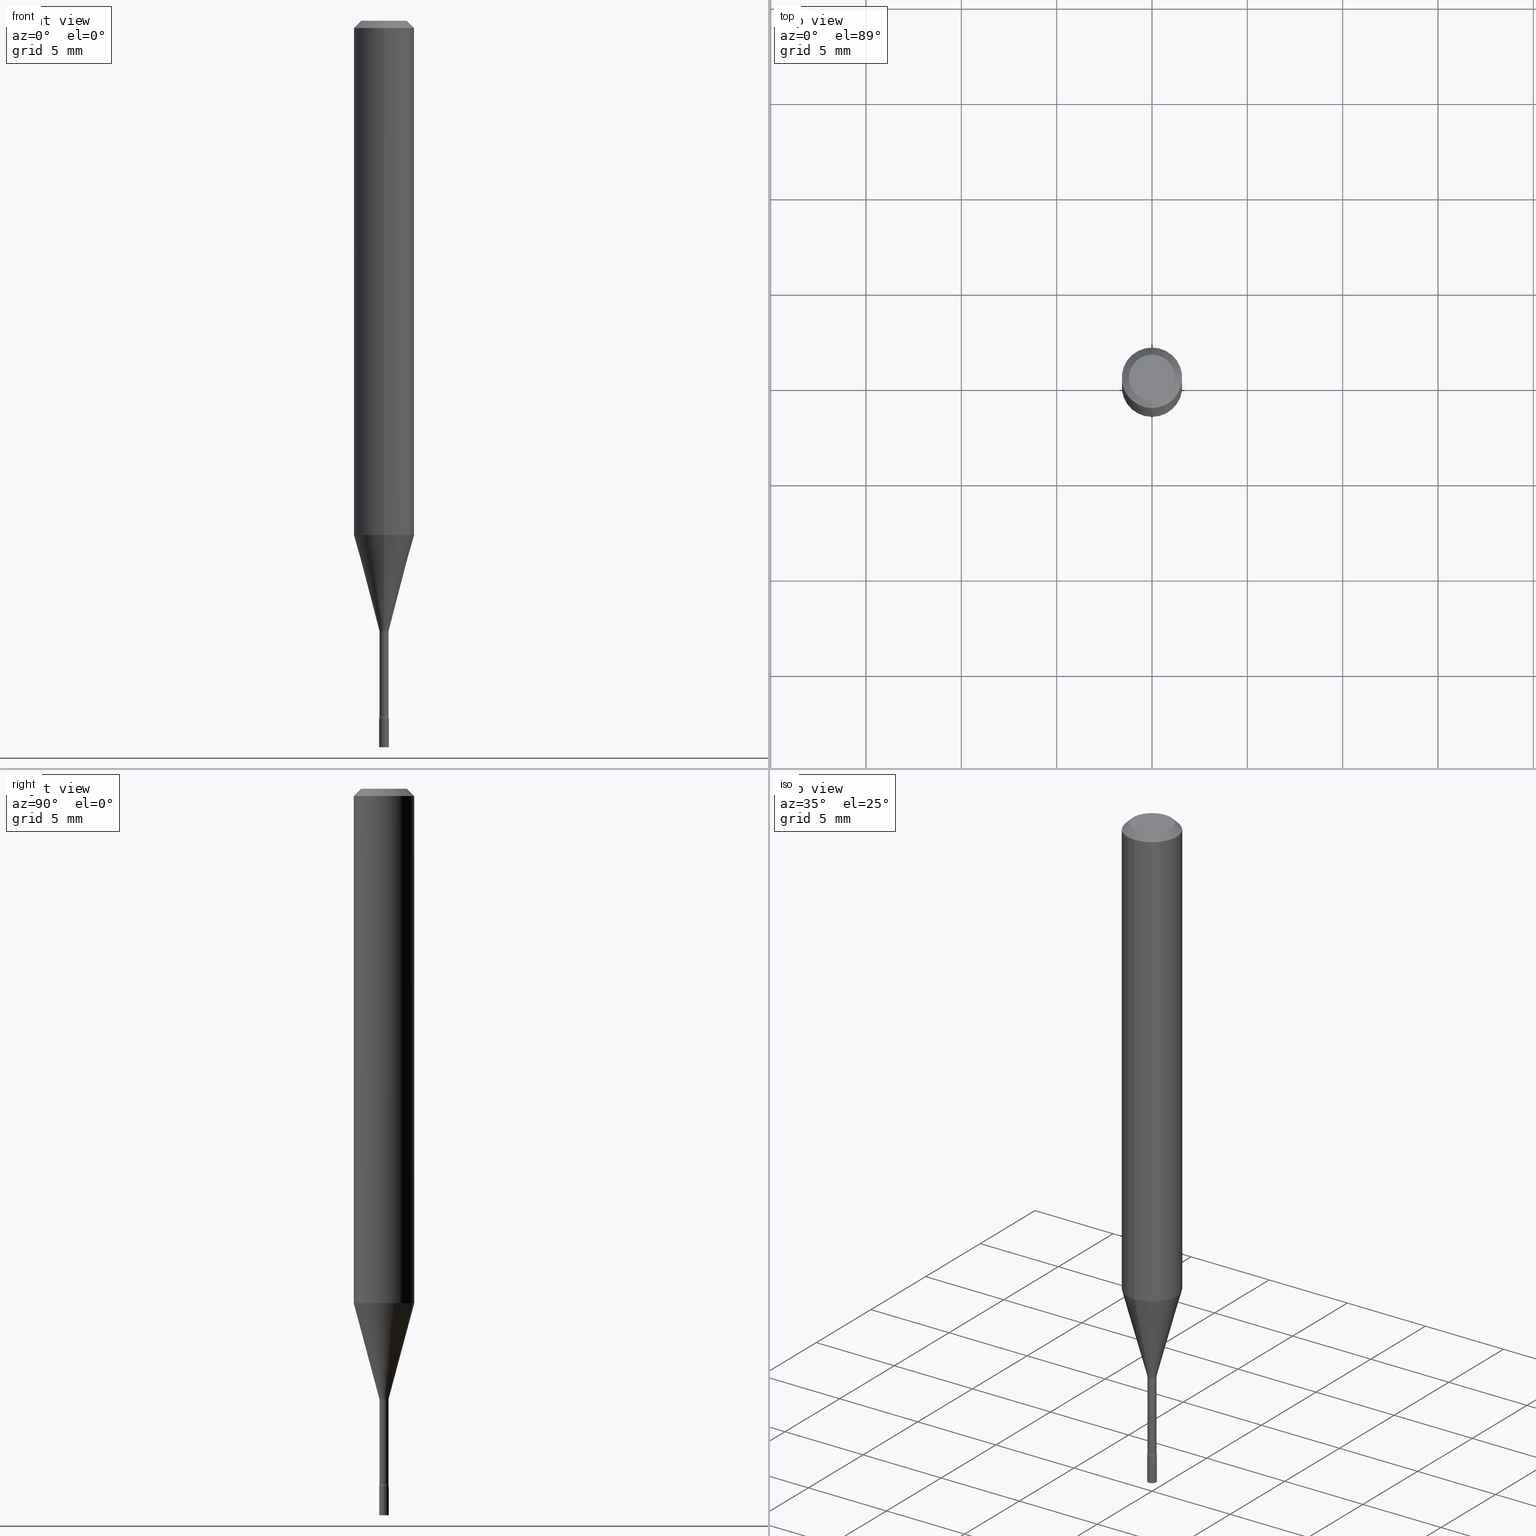
[diagram: canonical four-view strip — front | top / right | iso, engineering-drawing reading convention]
A machine part, canonical four-view strip (front | top / right | iso — engineering-drawing reading convention). The complete STEP part file that produces these views, byte-faithful:
ISO-10303-21;
HEADER;
FILE_DESCRIPTION (( 'STEP AP203' ),
    '1' );
FILE_NAME ('09356.STEP',
    '2024-03-08T23:17:54',
    ( '' ),
    ( '' ),
    'SwSTEP 2.0',
    'SolidWorks 2023',
    '' );
FILE_SCHEMA (( 'CONFIG_CONTROL_DESIGN' ));
ENDSEC;

DATA;
#1 = DIRECTION ( 'NONE',  ( 1.000000000000000000, -6.982962677686265922E-15, 4.876176775795935793E-29 ) ) ;
#2 = CC_DESIGN_PERSON_AND_ORGANIZATION_ASSIGNMENT ( #31, #191, ( #445 ) ) ;
#3 = DIRECTION ( 'NONE',  ( -6.982962677686265922E-15, -1.000000000000000000, 3.491392881467327032E-15 ) ) ;
#4 = DATE_AND_TIME ( #87, #151 ) ;
#5 = ADVANCED_BREP_SHAPE_REPRESENTATION ( '09356', ( #181, #13, #335 ), #44 ) ;
#6 = AXIS2_PLACEMENT_3D ( 'NONE', #290, #446, #157 ) ;
#7 = LINE ( 'NONE', #397, #381 ) ;
#8 = DIRECTION ( 'NONE',  ( -6.982962677686265922E-15, -1.000000000000000000, 0.000000000000000000 ) ) ;
#9 = PERSON_AND_ORGANIZATION ( #362, #312 ) ;
#10 = APPROVAL ( #251, 'UNSPECIFIED' ) ;
#11 = CIRCLE ( 'NONE', #473, 0.04749999999999999362 ) ;
#12 = CARTESIAN_POINT ( 'NONE',  ( 4.440892098500884514E-16, 0.06249999999999630157, -1.061828102118093309 ) ) ;
#13 = MANIFOLD_SOLID_BREP ( 'Body-Move/Copy2[2]', #402 ) ;
#14 = EDGE_LOOP ( 'NONE', ( #66, #146, #361, #225 ) ) ;
#15 = DIRECTION ( 'NONE',  ( -6.982962677686266711E-15, -1.000000000000000000, 3.491392881467327426E-15 ) ) ;
#16 = VERTEX_POINT ( 'NONE', #451 ) ;
#17 = CARTESIAN_POINT ( 'NONE',  ( -0.01000000000000000021, -5.061423294523413937E-15, -1.500000000000000222 ) ) ;
#18 = CARTESIAN_POINT ( 'NONE',  ( 3.086197928430206687E-29, -4.406049789542393538E-15, -1.261974787463811198 ) ) ;
#19 = VECTOR ( 'NONE', #55, 39.37007874015748143 ) ;
#20 = DIRECTION ( 'NONE',  ( -2.445468806185136597E-29, 3.491481338843145583E-15, 1.000000000000000000 ) ) ;
#21 = EDGE_CURVE ( 'NONE', #461, #32, #371, .T. ) ;
#22 = ORIENTED_EDGE ( 'NONE', *, *, #174, .T. ) ;
#23 = VERTEX_POINT ( 'NONE', #500 ) ;
#24 = PRODUCT_DEFINITION ( 'UNKNOWN', '', #515, #432 ) ;
#25 = ORIENTED_EDGE ( 'NONE', *, *, #359, .T. ) ;
#26 = DIRECTION ( 'NONE',  ( 1.839019923739596765E-15, 0.2588190451025244587, 0.9659258262890673130 ) ) ;
#27 = CIRCLE ( 'NONE', #347, 0.009911112605663982209 ) ;
#28 = DIRECTION ( 'NONE',  ( -2.445530575640527241E-29, 3.491392881467327032E-15, 1.000000000000000000 ) ) ;
#29 = ORIENTED_EDGE ( 'NONE', *, *, #503, .T. ) ;
#30 = DIRECTION ( 'NONE',  ( -2.445530575640527241E-29, 3.491392881467327032E-15, 1.000000000000000000 ) ) ;
#31 = PERSON_AND_ORGANIZATION ( #362, #312 ) ;
#32 = VERTEX_POINT ( 'NONE', #369 ) ;
#33 = AXIS2_PLACEMENT_3D ( 'NONE', #226, #147, #309 ) ;
#34 = DIRECTION ( 'NONE',  ( -2.445530575640527241E-29, 3.491392881467327032E-15, 1.000000000000000000 ) ) ;
#35 = AXIS2_PLACEMENT_3D ( 'NONE', #81, #483, #90 ) ;
#36 = DIRECTION ( 'NONE',  ( -6.982962677686266711E-15, -1.000000000000000000, 3.491392881467327426E-15 ) ) ;
#37 = COORDINATED_UNIVERSAL_TIME_OFFSET ( 5, 0, .BEHIND. ) ;
#38 = CARTESIAN_POINT ( 'NONE',  ( 0.000000000000000000, 0.000000000000000000, 0.000000000000000000 ) ) ;
#39 = DIRECTION ( 'NONE',  ( -2.445530575640527241E-29, 3.491392881467327032E-15, 1.000000000000000000 ) ) ;
#40 = SHAPE_DEFINITION_REPRESENTATION ( #48, #5 ) ;
#41 = VECTOR ( 'NONE', #420, 39.37007874015748143 ) ;
#42 = DIRECTION ( 'NONE',  ( -2.445530575640527241E-29, 3.491392881467327032E-15, 1.000000000000000000 ) ) ;
#43 = AXIS2_PLACEMENT_3D ( 'NONE', #111, #343, #340 ) ;
#44 =( GEOMETRIC_REPRESENTATION_CONTEXT ( 3 ) GLOBAL_UNCERTAINTY_ASSIGNED_CONTEXT ( ( #467 ) ) GLOBAL_UNIT_ASSIGNED_CONTEXT ( ( #49, #308, #378 ) ) REPRESENTATION_CONTEXT ( 'NONE', 'WORKASPACE' ) );
#45 = EDGE_CURVE ( 'NONE', #366, #263, #27, .T. ) ;
#46 = DIRECTION ( 'NONE',  ( -6.982962677686265922E-15, -1.000000000000000000, 3.483106191921935554E-15 ) ) ;
#47 = DIRECTION ( 'NONE',  ( -2.445530575640527241E-29, 3.491392881467327032E-15, 1.000000000000000000 ) ) ;
#48 = PRODUCT_DEFINITION_SHAPE ( 'NONE', 'NONE',  #24 ) ;
#49 =( CONVERSION_BASED_UNIT ( 'INCH', #491 ) LENGTH_UNIT ( ) NAMED_UNIT ( #197 ) );
#50 = EDGE_LOOP ( 'NONE', ( #513, #333, #109, #267 ) ) ;
#51 = CIRCLE ( 'NONE', #394, 0.01500000000000004455 ) ;
#52 = ADVANCED_FACE ( 'NONE', ( #301 ), #56, .T. ) ;
#53 = DATE_TIME_ROLE ( 'creation_date' ) ;
#54 = CONICAL_SURFACE ( 'NONE', #274, 0.009911112605663982209, 0.2617993877991497409 ) ;
#55 = DIRECTION ( 'NONE',  ( -2.445530575640527241E-29, 3.491392881467327032E-15, 1.000000000000000000 ) ) ;
#56 = PLANE ( 'NONE',  #319 ) ;
#57 = EDGE_CURVE ( 'NONE', #480, #119, #331, .T. ) ;
#58 = DIRECTION ( 'NONE',  ( -2.445530575640527241E-29, 3.491392881467327032E-15, 1.000000000000000000 ) ) ;
#59 = CIRCLE ( 'NONE', #78, 0.01000000000000000021 ) ;
#60 = FACE_OUTER_BOUND ( 'NONE', #14, .T. ) ;
#61 = APPROVAL_PERSON_ORGANIZATION ( #170, #10, #257 ) ;
#62 = CIRCLE ( 'NONE', #341, 0.06250000000000000000 ) ;
#63 = ORIENTED_EDGE ( 'NONE', *, *, #248, .T. ) ;
#64 = PRODUCT_RELATED_PRODUCT_CATEGORY ( 'detail', '', ( #258 ) ) ;
#65 = DIRECTION ( 'NONE',  ( 1.000000000000000000, -6.982962677686265922E-15, 4.876176775795935793E-29 ) ) ;
#66 = ORIENTED_EDGE ( 'NONE', *, *, #57, .F. ) ;
#67 = CARTESIAN_POINT ( 'NONE',  ( -6.920892941966668740E-17, -0.009911112605668374528, -1.258092501787273276 ) ) ;
#68 = ORIENTED_EDGE ( 'NONE', *, *, #96, .F. ) ;
#69 = DIRECTION ( 'NONE',  ( 2.445530575640527241E-29, -3.491392881467327032E-15, -1.000000000000000000 ) ) ;
#70 = PERSON_AND_ORGANIZATION_ROLE ( 'creator' ) ;
#71 = VECTOR ( 'NONE', #450, 39.37007874015748143 ) ;
#72 = AXIS2_PLACEMENT_3D ( 'NONE', #237, #401, #36 ) ;
#73 = EDGE_LOOP ( 'NONE', ( #354, #302, #63, #163 ) ) ;
#74 = CARTESIAN_POINT ( 'NONE',  ( -6.920892941966668740E-17, -0.009911112605668374528, -1.258092501787273276 ) ) ;
#75 = CARTESIAN_POINT ( 'NONE',  ( 7.042269065257976268E-17, 0.009911112605659589889, -1.258092501787273276 ) ) ;
#76 = ORIENTED_EDGE ( 'NONE', *, *, #268, .T. ) ;
#77 = EDGE_CURVE ( 'NONE', #291, #23, #356, .T. ) ;
#78 = AXIS2_PLACEMENT_3D ( 'NONE', #118, #232, #306 ) ;
#79 = AXIS2_PLACEMENT_3D ( 'NONE', #396, #351, #82 ) ;
#80 = ADVANCED_FACE ( 'NONE', ( #455 ), #200, .F. ) ;
#81 = CARTESIAN_POINT ( 'NONE',  ( 0.000000000000000000, 0.000000000000000000, 0.000000000000000000 ) ) ;
#82 = DIRECTION ( 'NONE',  ( -6.982962677686265133E-15, -1.000000000000000000, 0.000000000000000000 ) ) ;
#83 = EDGE_LOOP ( 'NONE', ( #320, #421, #211, #25 ) ) ;
#84 = ORIENTED_EDGE ( 'NONE', *, *, #498, .F. ) ;
#85 = CALENDAR_DATE ( 2024, 8, 3 ) ;
#86 = DIRECTION ( 'NONE',  ( -6.982962677686265922E-15, -1.000000000000000000, 3.491392881467327426E-15 ) ) ;
#87 = CALENDAR_DATE ( 2024, 8, 3 ) ;
#88 = EDGE_CURVE ( 'NONE', #260, #32, #97, .T. ) ;
#89 = VECTOR ( 'NONE', #172, 39.37007874015748143 ) ;
#90 = DIRECTION ( 'NONE',  ( -6.982962677686265922E-15, -1.000000000000000000, 3.491392881467327032E-15 ) ) ;
#91 = APPROVAL_PERSON_ORGANIZATION ( #439, #201, #278 ) ;
#92 = ORIENTED_EDGE ( 'NONE', *, *, #57, .T. ) ;
#93 = FACE_OUTER_BOUND ( 'NONE', #323, .T. ) ;
#94 = ORIENTED_EDGE ( 'NONE', *, *, #317, .T. ) ;
#95 = DIRECTION ( 'NONE',  ( 2.445530575640527241E-29, -3.491392881467327032E-15, -1.000000000000000000 ) ) ;
#96 = EDGE_CURVE ( 'NONE', #506, #250, #293, .T. ) ;
#97 = LINE ( 'NONE', #102, #470 ) ;
#98 = AXIS2_PLACEMENT_3D ( 'NONE', #355, #478, #8 ) ;
#99 = LINE ( 'NONE', #259, #19 ) ;
#100 = ORIENTED_EDGE ( 'NONE', *, *, #332, .T. ) ;
#101 = DIRECTION ( 'NONE',  ( -2.445530575640527241E-29, 3.491392881467327032E-15, 1.000000000000000000 ) ) ;
#102 = CARTESIAN_POINT ( 'NONE',  ( 4.364351673553919652E-16, 0.06249999999999995143, -0.01500000000000024751 ) ) ;
#103 = VECTOR ( 'NONE', #273, 39.37007874015748143 ) ;
#104 = CC_DESIGN_PERSON_AND_ORGANIZATION_ASSIGNMENT ( #399, #358, ( #24 ) ) ;
#105 = ORIENTED_EDGE ( 'NONE', *, *, #248, .F. ) ;
#106 = CARTESIAN_POINT ( 'NONE',  ( 2.596733089804148317E-29, -3.707259077077071931E-15, -1.061828102118093087 ) ) ;
#107 = ORIENTED_EDGE ( 'NONE', *, *, #205, .F. ) ;
#108 = AXIS2_PLACEMENT_3D ( 'NONE', #324, #127, #238 ) ;
#109 = ORIENTED_EDGE ( 'NONE', *, *, #77, .F. ) ;
#110 = DIRECTION ( 'NONE',  ( -6.982962677686265922E-15, -1.000000000000000000, 0.000000000000000000 ) ) ;
#111 = CARTESIAN_POINT ( 'NONE',  ( 6.982962677689933928E-17, 0.009999999999994763078, -1.500000000000000222 ) ) ;
#112 = CARTESIAN_POINT ( 'NONE',  ( 0.000000000000000000, 0.000000000000000000, 0.000000000000000000 ) ) ;
#113 = LINE ( 'NONE', #427, #103 ) ;
#114 = PERSON_AND_ORGANIZATION ( #362, #312 ) ;
#115 = AXIS2_PLACEMENT_3D ( 'NONE', #255, #134, #262 ) ;
#116 = CIRCLE ( 'NONE', #479, 0.06250000000000000000 ) ;
#117 = ORIENTED_EDGE ( 'NONE', *, *, #332, .F. ) ;
#118 = CARTESIAN_POINT ( 'NONE',  ( 3.668203209277704895E-29, -5.237222008264718177E-15, -1.500000000000000222 ) ) ;
#119 = VERTEX_POINT ( 'NONE', #419 ) ;
#120 = DIRECTION ( 'NONE',  ( -2.445468806185136597E-29, 3.491481338843145583E-15, 1.000000000000000000 ) ) ;
#121 = CYLINDRICAL_SURFACE ( 'NONE', #289, 0.009399999999999993430 ) ;
#122 = EDGE_LOOP ( 'NONE', ( #376, #501, #76, #206 ) ) ;
#123 = AXIS2_PLACEMENT_3D ( 'NONE', #449, #254, #136 ) ;
#124 = FACE_OUTER_BOUND ( 'NONE', #203, .T. ) ;
#125 = EDGE_LOOP ( 'NONE', ( #166, #463, #383, #493 ) ) ;
#126 = FACE_OUTER_BOUND ( 'NONE', #512, .T. ) ;
#127 = DIRECTION ( 'NONE',  ( -2.445530575640527241E-29, 3.491392881467327032E-15, 1.000000000000000000 ) ) ;
#128 = CONICAL_SURFACE ( 'NONE', #327, 0.06250000000000000000, 0.7853981633974483900 ) ;
#129 = CC_DESIGN_APPROVAL ( #10, ( #515 ) ) ;
#130 = LOCAL_TIME ( 18, 17, 54.00000000000000000, #316 ) ;
#131 = ADVANCED_FACE ( 'NONE', ( #60 ), #487, .T. ) ;
#132 = CARTESIAN_POINT ( 'NONE',  ( -1.703842893355099549E-16, -0.02440000000000503919, -1.435799999999999965 ) ) ;
#133 = DIRECTION ( 'NONE',  ( -2.445530575640527241E-29, 3.491392881467327032E-15, 1.000000000000000000 ) ) ;
#134 = DIRECTION ( 'NONE',  ( -2.445530575640527241E-29, 3.491392881467327032E-15, 1.000000000000000000 ) ) ;
#135 = MECHANICAL_CONTEXT ( 'NONE', #380, 'mechanical' ) ;
#136 = DIRECTION ( 'NONE',  ( -6.982962677686265922E-15, -1.000000000000000000, 3.491392881467327032E-15 ) ) ;
#137 = ORIENTED_EDGE ( 'NONE', *, *, #460, .F. ) ;
#138 = TOROIDAL_SURFACE ( 'NONE', #411, 0.02440000000000000155, 0.01500000000000002547 ) ;
#139 = DIRECTION ( 'NONE',  ( -2.445530575640527241E-29, 3.491392881467327032E-15, 1.000000000000000000 ) ) ;
#140 = ORIENTED_EDGE ( 'NONE', *, *, #400, .T. ) ;
#141 = FACE_OUTER_BOUND ( 'NONE', #125, .T. ) ;
#142 = ORIENTED_EDGE ( 'NONE', *, *, #174, .F. ) ;
#143 = CARTESIAN_POINT ( 'NONE',  ( 3.521475080906597305E-29, -5.027733127934130649E-15, -1.440000000000000169 ) ) ;
#144 = CIRCLE ( 'NONE', #185, 0.01500000000000004455 ) ;
#145 = PLANE ( 'NONE',  #398 ) ;
#146 = ORIENTED_EDGE ( 'NONE', *, *, #448, .F. ) ;
#147 = DIRECTION ( 'NONE',  ( -2.445530575640527241E-29, 3.491392881467327032E-15, 1.000000000000000000 ) ) ;
#148 = CARTESIAN_POINT ( 'NONE',  ( -6.563984917021568552E-17, -0.009400000000004999842, -1.435799999999999965 ) ) ;
#149 = ORIENTED_EDGE ( 'NONE', *, *, #256, .T. ) ;
#150 = AXIS2_PLACEMENT_3D ( 'NONE', #315, #162, #3 ) ;
#151 = LOCAL_TIME ( 18, 17, 54.00000000000000000, #484 ) ;
#152 = FACE_OUTER_BOUND ( 'NONE', #482, .T. ) ;
#153 = APPROVAL ( #441, 'UNSPECIFIED' ) ;
#154 = APPROVAL_STATUS ( 'not_yet_approved' ) ;
#155 = CARTESIAN_POINT ( 'NONE',  ( 3.511204111920619566E-29, -5.013068906310988441E-15, -1.435799999999999965 ) ) ;
#156 = APPLICATION_PROTOCOL_DEFINITION ( 'international standard', 'config_control_design', 1994, #266 ) ;
#157 = DIRECTION ( 'NONE',  ( 1.000000000000000000, -6.982962677686265922E-15, 4.876176775795935793E-29 ) ) ;
#158 = CIRCLE ( 'NONE', #72, 0.04749999999999999362 ) ;
#159 = ADVANCED_FACE ( 'NONE', ( #141 ), #514, .T. ) ;
#160 = CARTESIAN_POINT ( 'NONE',  ( 3.086197928430206687E-29, -4.406049789542393538E-15, -1.261974787463811198 ) ) ;
#161 = ORIENTED_EDGE ( 'NONE', *, *, #205, .T. ) ;
#162 = DIRECTION ( 'NONE',  ( -2.445530575640527241E-29, 3.491392881467327032E-15, 1.000000000000000000 ) ) ;
#163 = ORIENTED_EDGE ( 'NONE', *, *, #429, .F. ) ;
#164 = CARTESIAN_POINT ( 'NONE',  ( 0.01000000000000000021, -5.097562754710993158E-15, -1.440000000000000169 ) ) ;
#165 = VECTOR ( 'NONE', #26, 39.37007874015748143 ) ;
#166 = ORIENTED_EDGE ( 'NONE', *, *, #498, .T. ) ;
#167 =( LENGTH_UNIT ( ) NAMED_UNIT ( * ) SI_UNIT ( $, .METRE. ) );
#168 = ADVANCED_FACE ( 'NONE', ( #230 ), #128, .T. ) ;
#169 = CARTESIAN_POINT ( 'NONE',  ( 3.076703680104861459E-29, -4.392495204967507173E-15, -1.258092501787273276 ) ) ;
#170 = PERSON_AND_ORGANIZATION ( #362, #312 ) ;
#171 = DIRECTION ( 'NONE',  ( -6.982962677686265922E-15, -1.000000000000000000, 3.483106191921935554E-15 ) ) ;
#172 = DIRECTION ( 'NONE',  ( -2.445468806185136877E-29, 3.491481338843145188E-15, 1.000000000000000000 ) ) ;
#173 = CARTESIAN_POINT ( 'NONE',  ( -6.982962677682756526E-17, -0.01000000000000504478, -1.440000000000000169 ) ) ;
#174 = EDGE_CURVE ( 'NONE', #506, #465, #59, .T. ) ;
#175 = CARTESIAN_POINT ( 'NONE',  ( 4.440892098500625669E-16, 0.06250000000000000000, -2.182120550917079395E-16 ) ) ;
#176 = AXIS2_PLACEMENT_3D ( 'NONE', #106, #215, #406 ) ;
#177 = ORIENTED_EDGE ( 'NONE', *, *, #417, .F. ) ;
#178 = CARTESIAN_POINT ( 'NONE',  ( 3.076703680104861459E-29, -4.392495204967507173E-15, -1.258092501787273276 ) ) ;
#179 = CARTESIAN_POINT ( 'NONE',  ( 3.521475080906597305E-29, -5.027733127934130649E-15, -1.440000000000000169 ) ) ;
#180 = ORIENTED_EDGE ( 'NONE', *, *, #370, .F. ) ;
#181 = MANIFOLD_SOLID_BREP ( 'Body-Move/Copy2[1]', #253 ) ;
#182 = CARTESIAN_POINT ( 'NONE',  ( 3.840629472727447874E-16, 0.04749999999999999362, -1.947592745229184119E-16 ) ) ;
#183 = ADVANCED_FACE ( 'NONE', ( #385 ), #227, .T. ) ;
#184 = DIRECTION ( 'NONE',  ( -6.982962677686265922E-15, -1.000000000000000000, 3.491392881467327426E-15 ) ) ;
#185 = AXIS2_PLACEMENT_3D ( 'NONE', #202, #196, #360 ) ;
#186 = ADVANCED_FACE ( 'NONE', ( #388 ), #54, .T. ) ;
#187 = DIRECTION ( 'NONE',  ( 6.982962677686265922E-15, 1.000000000000000000, -3.483106191921935554E-15 ) ) ;
#188 = CIRCLE ( 'NONE', #415, 0.01000000000000000021 ) ;
#189 = EDGE_LOOP ( 'NONE', ( #29, #471, #438, #447 ) ) ;
#190 = DIRECTION ( 'NONE',  ( -2.445468806185136597E-29, 3.491481338843145583E-15, 1.000000000000000000 ) ) ;
#191 = PERSON_AND_ORGANIZATION_ROLE ( 'classification_officer' ) ;
#192 = CC_DESIGN_PERSON_AND_ORGANIZATION_ASSIGNMENT ( #195, #519, ( #258 ) ) ;
#193 = DIRECTION ( 'NONE',  ( 6.982962677686265922E-15, 1.000000000000000000, -3.491392881467327032E-15 ) ) ;
#194 = APPROVAL_DATE_TIME ( #389, #10 ) ;
#195 = PERSON_AND_ORGANIZATION ( #362, #312 ) ;
#196 = DIRECTION ( 'NONE',  ( 1.000000000000000000, -7.105427357601001070E-15, 4.926314425251660981E-29 ) ) ;
#197 = DIMENSIONAL_EXPONENTS ( 1.000000000000000000, 0.000000000000000000, 0.000000000000000000, 0.000000000000000000, 0.000000000000000000, 0.000000000000000000, 0.000000000000000000 ) ;
#198 = CARTESIAN_POINT ( 'NONE',  ( 0.000000000000000000, 0.000000000000000000, 0.000000000000000000 ) ) ;
#199 = FACE_OUTER_BOUND ( 'NONE', #243, .T. ) ;
#200 = TOROIDAL_SURFACE ( 'NONE', #115, 0.02440000000000002583, 0.01500000000000004108 ) ;
#201 = APPROVAL ( #154, 'UNSPECIFIED' ) ;
#202 = CARTESIAN_POINT ( 'NONE',  ( 1.733724275254997332E-16, 0.02439999999999501595, -1.435799999999999965 ) ) ;
#203 = EDGE_LOOP ( 'NONE', ( #177, #84, #410, #229 ) ) ;
#204 = DIRECTION ( 'NONE',  ( -2.445468806185136597E-29, 3.491481338843145583E-15, 1.000000000000000000 ) ) ;
#205 = EDGE_CURVE ( 'NONE', #250, #364, #212, .T. ) ;
#206 = ORIENTED_EDGE ( 'NONE', *, *, #317, .F. ) ;
#207 = FACE_OUTER_BOUND ( 'NONE', #222, .T. ) ;
#208 = APPROVAL_DATE_TIME ( #4, #153 ) ;
#209 = EDGE_CURVE ( 'NONE', #282, #23, #468, .T. ) ;
#210 = AXIS2_PLACEMENT_3D ( 'NONE', #155, #283, #433 ) ;
#211 = ORIENTED_EDGE ( 'NONE', *, *, #429, .T. ) ;
#212 = CIRCLE ( 'NONE', #292, 0.01000000000000000021 ) ;
#213 = VERTEX_POINT ( 'NONE', #277 ) ;
#214 = EDGE_CURVE ( 'NONE', #465, #506, #188, .T. ) ;
#215 = DIRECTION ( 'NONE',  ( -2.445530575640527241E-29, 3.491392881467327032E-15, 1.000000000000000000 ) ) ;
#216 = DIRECTION ( 'NONE',  ( -6.982962677686264344E-15, -1.000000000000000000, 0.000000000000000000 ) ) ;
#217 = AXIS2_PLACEMENT_3D ( 'NONE', #219, #95, #377 ) ;
#218 = DIRECTION ( 'NONE',  ( -6.982962677686264344E-15, -1.000000000000000000, 0.000000000000000000 ) ) ;
#219 = CARTESIAN_POINT ( 'NONE',  ( 3.668295863460798323E-31, -5.237089322201001616E-17, -0.01500000000000003067 ) ) ;
#220 = CC_DESIGN_APPROVAL ( #201, ( #24 ) ) ;
#221 = CC_DESIGN_APPROVAL ( #153, ( #445 ) ) ;
#222 = EDGE_LOOP ( 'NONE', ( #338, #272, #100, #180 ) ) ;
#223 = EDGE_CURVE ( 'NONE', #233, #282, #330, .T. ) ;
#224 = CARTESIAN_POINT ( 'NONE',  ( -0.01000000000000000021, 7.105427357601002007E-17, -4.918935090254906272E-31 ) ) ;
#225 = ORIENTED_EDGE ( 'NONE', *, *, #460, .T. ) ;
#226 = CARTESIAN_POINT ( 'NONE',  ( 3.521564028922359944E-29, -5.027605749312952283E-15, -1.440000000000000169 ) ) ;
#227 = PLANE ( 'NONE',  #43 ) ;
#228 = TOROIDAL_SURFACE ( 'NONE', #108, 0.02440000000000000155, 0.01500000000000002547 ) ;
#229 = ORIENTED_EDGE ( 'NONE', *, *, #77, .T. ) ;
#230 = FACE_OUTER_BOUND ( 'NONE', #336, .T. ) ;
#231 = ADVANCED_FACE ( 'NONE', ( #152 ), #145, .F. ) ;
#232 = DIRECTION ( 'NONE',  ( -2.445468806185136597E-29, 3.491481338843145583E-15, 1.000000000000000000 ) ) ;
#233 = VERTEX_POINT ( 'NONE', #148 ) ;
#234 = CARTESIAN_POINT ( 'NONE',  ( 3.668203209277704895E-29, -5.237222008264718177E-15, -1.500000000000000222 ) ) ;
#235 = PERSON_AND_ORGANIZATION_ROLE ( 'design_supplier' ) ;
#236 = CIRCLE ( 'NONE', #79, 0.01500000000000002720 ) ;
#237 = CARTESIAN_POINT ( 'NONE',  ( 7.072012868326764152E-46, -1.009644926629238683E-31, -2.891811265322037764E-17 ) ) ;
#238 = DIRECTION ( 'NONE',  ( -6.982962677686265922E-15, -1.000000000000000000, 3.491392881467327032E-15 ) ) ;
#239 = AXIS2_PLACEMENT_3D ( 'NONE', #462, #28, #509 ) ;
#240 = ORIENTED_EDGE ( 'NONE', *, *, #214, .F. ) ;
#241 = CC_DESIGN_DATE_AND_TIME_ASSIGNMENT ( #349, #517, ( #445 ) ) ;
#242 = DIRECTION ( 'NONE',  ( -6.982962677686265922E-15, -1.000000000000000000, 0.000000000000000000 ) ) ;
#243 = EDGE_LOOP ( 'NONE', ( #403, #436, #311, #458 ) ) ;
#244 = DATE_AND_TIME ( #85, #288 ) ;
#245 = EDGE_CURVE ( 'NONE', #282, #233, #390, .T. ) ;
#246 = AXIS2_PLACEMENT_3D ( 'NONE', #516, #269, #184 ) ;
#247 = CYLINDRICAL_SURFACE ( 'NONE', #35, 0.06250000000000000000 ) ;
#248 = EDGE_CURVE ( 'NONE', #16, #510, #294, .T. ) ;
#249 = CARTESIAN_POINT ( 'NONE',  ( 2.596733089804148317E-29, -3.707259077077071931E-15, -1.061828102118093087 ) ) ;
#250 = VERTEX_POINT ( 'NONE', #422 ) ;
#251 = APPROVAL_STATUS ( 'not_yet_approved' ) ;
#252 = ORIENTED_EDGE ( 'NONE', *, *, #88, .F. ) ;
#253 = CLOSED_SHELL ( 'NONE', ( #367, #52, #299, #183 ) ) ;
#254 = DIRECTION ( 'NONE',  ( -2.445530575640526960E-29, 3.491392881467327032E-15, 1.000000000000000000 ) ) ;
#255 = CARTESIAN_POINT ( 'NONE',  ( 3.511204111920619566E-29, -5.013068906310988441E-15, -1.435799999999999965 ) ) ;
#256 = EDGE_CURVE ( 'NONE', #465, #364, #113, .T. ) ;
#257 = APPROVAL_ROLE ( '' ) ;
#258 = PRODUCT ( '09356', '09356', '', ( #135 ) ) ;
#259 = CARTESIAN_POINT ( 'NONE',  ( -6.563984917025085146E-17, -0.009399999999999993430, 3.281909308579285439E-17 ) ) ;
#260 = VERTEX_POINT ( 'NONE', #182 ) ;
#261 = DIRECTION ( 'NONE',  ( -1.000000000000000000, 6.982962677686265922E-15, -4.883557194083112340E-29 ) ) ;
#262 = DIRECTION ( 'NONE',  ( -6.982962677686265922E-15, -1.000000000000000000, 3.491392881467327032E-15 ) ) ;
#263 = VERTEX_POINT ( 'NONE', #74 ) ;
#264 = AXIS2_PLACEMENT_3D ( 'NONE', #198, #204, #1 ) ;
#265 = ORIENTED_EDGE ( 'NONE', *, *, #486, .T. ) ;
#266 = APPLICATION_CONTEXT ( 'configuration controlled 3d designs of mechanical parts and assemblies' ) ;
#267 = ORIENTED_EDGE ( 'NONE', *, *, #486, .F. ) ;
#268 = EDGE_CURVE ( 'NONE', #263, #213, #310, .T. ) ;
#269 = DIRECTION ( 'NONE',  ( -2.445530575640527241E-29, 3.491392881467327032E-15, 1.000000000000000000 ) ) ;
#270 = DIRECTION ( 'NONE',  ( -6.982962677686264344E-15, -1.000000000000000000, 0.000000000000000000 ) ) ;
#271 = EDGE_CURVE ( 'NONE', #366, #461, #428, .T. ) ;
#272 = ORIENTED_EDGE ( 'NONE', *, *, #417, .T. ) ;
#273 = DIRECTION ( 'NONE',  ( -2.445468806185136877E-29, 3.491481338843145188E-15, 1.000000000000000000 ) ) ;
#274 = AXIS2_PLACEMENT_3D ( 'NONE', #504, #34, #511 ) ;
#275 = CARTESIAN_POINT ( 'NONE',  ( 3.511292800504669341E-29, -5.012941899210789054E-15, -1.435799999999999965 ) ) ;
#276 = ORIENTED_EDGE ( 'NONE', *, *, #245, .T. ) ;
#277 = CARTESIAN_POINT ( 'NONE',  ( -4.364351673553657849E-16, -0.06250000000000371925, -1.061828102118092865 ) ) ;
#278 = APPROVAL_ROLE ( '' ) ;
#279 = ADVANCED_FACE ( 'NONE', ( #313 ), #348, .T. ) ;
#280 = DIRECTION ( 'NONE',  ( -2.445530575640527241E-29, 3.491392881467327032E-15, 1.000000000000000000 ) ) ;
#281 = CIRCLE ( 'NONE', #98, 0.01000000000000000021 ) ;
#282 = VERTEX_POINT ( 'NONE', #342 ) ;
#283 = DIRECTION ( 'NONE',  ( -2.445530575640527241E-29, 3.491392881467327032E-15, 1.000000000000000000 ) ) ;
#284 = AXIS2_PLACEMENT_3D ( 'NONE', #275, #464, #110 ) ;
#285 = CARTESIAN_POINT ( 'NONE',  ( 1.733724275254952959E-16, 0.02439999999999559535, -1.261974787463811198 ) ) ;
#286 = AXIS2_PLACEMENT_3D ( 'NONE', #329, #133, #270 ) ;
#287 = EDGE_CURVE ( 'NONE', #119, #32, #116, .T. ) ;
#288 = LOCAL_TIME ( 18, 17, 54.00000000000000000, #37 ) ;
#289 = AXIS2_PLACEMENT_3D ( 'NONE', #38, #42, #86 ) ;
#290 = CARTESIAN_POINT ( 'NONE',  ( 0.000000000000000000, 0.000000000000000000, 0.000000000000000000 ) ) ;
#291 = VERTEX_POINT ( 'NONE', #481 ) ;
#292 = AXIS2_PLACEMENT_3D ( 'NONE', #143, #120, #382 ) ;
#293 = LINE ( 'NONE', #224, #89 ) ;
#294 = CIRCLE ( 'NONE', #33, 0.01000000000000000021 ) ;
#295 = ORIENTED_EDGE ( 'NONE', *, *, #424, .T. ) ;
#296 = CALENDAR_DATE ( 2024, 8, 3 ) ;
#297 = CARTESIAN_POINT ( 'NONE',  ( 3.086119976934868225E-29, -4.406161420520441844E-15, -1.261974787463811198 ) ) ;
#298 = CIRCLE ( 'NONE', #452, 0.009911112605663982209 ) ;
#299 = ADVANCED_FACE ( 'NONE', ( #126 ), #326, .T. ) ;
#300 = DIRECTION ( 'NONE',  ( -2.438088387897960049E-29, 3.491481338843145188E-15, 1.000000000000000000 ) ) ;
#301 = FACE_OUTER_BOUND ( 'NONE', #466, .T. ) ;
#302 = ORIENTED_EDGE ( 'NONE', *, *, #407, .T. ) ;
#303 = EDGE_LOOP ( 'NONE', ( #499, #105 ) ) ;
#304 = ADVANCED_FACE ( 'NONE', ( #440 ), #247, .T. ) ;
#305 = CIRCLE ( 'NONE', #404, 0.06250000000000000000 ) ;
#306 = DIRECTION ( 'NONE',  ( 1.000000000000000000, -6.982962677686235945E-15, 0.000000000000000000 ) ) ;
#307 = DIRECTION ( 'NONE',  ( -2.445530575640527241E-29, 3.491392881467327032E-15, 1.000000000000000000 ) ) ;
#308 =( NAMED_UNIT ( * ) PLANE_ANGLE_UNIT ( ) SI_UNIT ( $, .RADIAN. ) );
#309 = DIRECTION ( 'NONE',  ( -6.982962677686265922E-15, -1.000000000000000000, 0.000000000000000000 ) ) ;
#310 = LINE ( 'NONE', #67, #391 ) ;
#311 = ORIENTED_EDGE ( 'NONE', *, *, #424, .F. ) ;
#312 = ORGANIZATION ( 'UNSPECIFIED', 'UNSPECIFIED', '' ) ;
#313 = FACE_OUTER_BOUND ( 'NONE', #456, .T. ) ;
#314 = EDGE_CURVE ( 'NONE', #213, #119, #7, .T. ) ;
#315 = CARTESIAN_POINT ( 'NONE',  ( 0.000000000000000000, 0.000000000000000000, 0.000000000000000000 ) ) ;
#316 = COORDINATED_UNIVERSAL_TIME_OFFSET ( 5, 0, .BEHIND. ) ;
#317 = EDGE_CURVE ( 'NONE', #461, #213, #305, .T. ) ;
#318 = CYLINDRICAL_SURFACE ( 'NONE', #150, 0.06250000000000000000 ) ;
#319 = AXIS2_PLACEMENT_3D ( 'NONE', #179, #300, #65 ) ;
#320 = ORIENTED_EDGE ( 'NONE', *, *, #407, .F. ) ;
#321 = AXIS2_PLACEMENT_3D ( 'NONE', #285, #520, #477 ) ;
#322 = FACE_OUTER_BOUND ( 'NONE', #50, .T. ) ;
#323 = EDGE_LOOP ( 'NONE', ( #489, #94, #502, #137 ) ) ;
#324 = CARTESIAN_POINT ( 'NONE',  ( 3.086119976934868225E-29, -4.406161420520441844E-15, -1.261974787463811198 ) ) ;
#325 = ADVANCED_FACE ( 'NONE', ( #353 ), #444, .F. ) ;
#326 = CYLINDRICAL_SURFACE ( 'NONE', #264, 0.01000000000000000021 ) ;
#327 = AXIS2_PLACEMENT_3D ( 'NONE', #423, #69, #187 ) ;
#328 = ORIENTED_EDGE ( 'NONE', *, *, #209, .F. ) ;
#329 = CARTESIAN_POINT ( 'NONE',  ( 3.076703680104861459E-29, -4.392495204967507173E-15, -1.258092501787273276 ) ) ;
#330 = CIRCLE ( 'NONE', #239, 0.009399999999999986491 ) ;
#331 = LINE ( 'NONE', #373, #71 ) ;
#332 = EDGE_CURVE ( 'NONE', #23, #291, #426, .T. ) ;
#333 = ORIENTED_EDGE ( 'NONE', *, *, #209, .T. ) ;
#334 = AXIS2_PLACEMENT_3D ( 'NONE', #18, #495, #413 ) ;
#335 = AXIS2_PLACEMENT_3D ( 'NONE', #112, #425, #384 ) ;
#336 = EDGE_LOOP ( 'NONE', ( #485, #92, #416, #252 ) ) ;
#337 = PLANE ( 'NONE',  #123 ) ;
#338 = ORIENTED_EDGE ( 'NONE', *, *, #45, .F. ) ;
#339 = CC_DESIGN_PERSON_AND_ORGANIZATION_ASSIGNMENT ( #386, #235, ( #515 ) ) ;
#340 = DIRECTION ( 'NONE',  ( -1.000000000000000000, 6.982962677686265922E-15, -4.876176775795935793E-29 ) ) ;
#341 = AXIS2_PLACEMENT_3D ( 'NONE', #412, #418, #171 ) ;
#342 = CARTESIAN_POINT ( 'NONE',  ( 6.892264536876495998E-17, 0.009399999999994973141, -1.435799999999999965 ) ) ;
#343 = DIRECTION ( 'NONE',  ( 2.438088387897960049E-29, -3.491481338843145188E-15, -1.000000000000000000 ) ) ;
#344 = CARTESIAN_POINT ( 'NONE',  ( 3.316907271900976096E-16, 0.04749999999999999362, -1.803002181963082200E-16 ) ) ;
#345 = CALENDAR_DATE ( 2024, 8, 3 ) ;
#346 = DATE_AND_TIME ( #442, #374 ) ;
#347 = AXIS2_PLACEMENT_3D ( 'NONE', #169, #139, #216 ) ;
#348 = CYLINDRICAL_SURFACE ( 'NONE', #246, 0.009399999999999993430 ) ;
#349 = DATE_AND_TIME ( #345, #130 ) ;
#350 = LOCAL_TIME ( 18, 17, 54.00000000000000000, #496 ) ;
#351 = DIRECTION ( 'NONE',  ( -1.000000000000000000, 6.982962677686265922E-15, -4.883557194083112340E-29 ) ) ;
#352 = CC_DESIGN_DATE_AND_TIME_ASSIGNMENT ( #244, #53, ( #24 ) ) ;
#353 = FACE_OUTER_BOUND ( 'NONE', #83, .T. ) ;
#354 = ORIENTED_EDGE ( 'NONE', *, *, #245, .F. ) ;
#355 = CARTESIAN_POINT ( 'NONE',  ( 3.521564028922359944E-29, -5.027605749312952283E-15, -1.440000000000000169 ) ) ;
#356 = CIRCLE ( 'NONE', #334, 0.009400000000000002104 ) ;
#357 = CIRCLE ( 'NONE', #176, 0.06250000000000000000 ) ;
#358 = PERSON_AND_ORGANIZATION_ROLE ( 'creator' ) ;
#359 = EDGE_CURVE ( 'NONE', #510, #16, #281, .T. ) ;
#360 = DIRECTION ( 'NONE',  ( 7.105427357601000281E-15, 1.000000000000000000, 0.000000000000000000 ) ) ;
#361 = ORIENTED_EDGE ( 'NONE', *, *, #88, .T. ) ;
#362 = PERSON ( 'UNSPECIFIED', 'UNSPECIFIED', 'UNSPECIFIED', ('UNSPECIFIED'), ('UNSPECIFIED'), ('UNSPECIFIED') ) ;
#363 = DIRECTION ( 'NONE',  ( -6.982962677686265922E-15, -1.000000000000000000, 4.370956789862821150E-15 ) ) ;
#364 = VERTEX_POINT ( 'NONE', #164 ) ;
#365 = CARTESIAN_POINT ( 'NONE',  ( 0.01000000000000000021, -5.307051635041580686E-15, -1.500000000000000222 ) ) ;
#366 = VERTEX_POINT ( 'NONE', #488 ) ;
#367 = ADVANCED_FACE ( 'NONE', ( #199 ), #437, .T. ) ;
#368 = DIRECTION ( 'NONE',  ( -6.982962677686265922E-15, -1.000000000000000000, 0.000000000000000000 ) ) ;
#369 = CARTESIAN_POINT ( 'NONE',  ( 4.440892098500887472E-16, 0.06249999999999995837, -0.01500000000000024751 ) ) ;
#370 = EDGE_CURVE ( 'NONE', #263, #291, #236, .T. ) ;
#371 = LINE ( 'NONE', #175, #41 ) ;
#372 = DIRECTION ( 'NONE',  ( 1.000000000000000000, -6.982962677686235945E-15, 0.000000000000000000 ) ) ;
#373 = CARTESIAN_POINT ( 'NONE',  ( -4.287811248607203282E-16, -0.06250000000000005551, -0.01499999999999981209 ) ) ;
#374 = LOCAL_TIME ( 18, 17, 54.00000000000000000, #431 ) ;
#375 = ADVANCED_FACE ( 'NONE', ( #322 ), #121, .T. ) ;
#376 = ORIENTED_EDGE ( 'NONE', *, *, #271, .F. ) ;
#377 = DIRECTION ( 'NONE',  ( 6.982962677686265922E-15, 1.000000000000000000, -3.483106191921935554E-15 ) ) ;
#378 =( NAMED_UNIT ( * ) SI_UNIT ( $, .STERADIAN. ) SOLID_ANGLE_UNIT ( ) );
#379 = EDGE_LOOP ( 'NONE', ( #240, #142 ) ) ;
#380 = APPLICATION_CONTEXT ( 'configuration controlled 3d designs of mechanical parts and assemblies' ) ;
#381 = VECTOR ( 'NONE', #405, 39.37007874015748143 ) ;
#382 = DIRECTION ( 'NONE',  ( 1.000000000000000000, -6.982962677686235945E-15, 0.000000000000000000 ) ) ;
#383 = ORIENTED_EDGE ( 'NONE', *, *, #503, .F. ) ;
#384 = DIRECTION ( 'NONE',  ( 1.000000000000000000, 0.000000000000000000, 0.000000000000000000 ) ) ;
#385 = FACE_OUTER_BOUND ( 'NONE', #379, .T. ) ;
#386 = PERSON_AND_ORGANIZATION ( #362, #312 ) ;
#387 = ADVANCED_FACE ( 'NONE', ( #93 ), #318, .T. ) ;
#388 = FACE_OUTER_BOUND ( 'NONE', #122, .T. ) ;
#389 = DATE_AND_TIME ( #296, #350 ) ;
#390 = CIRCLE ( 'NONE', #284, 0.009399999999999986491 ) ;
#391 = VECTOR ( 'NONE', #474, 39.37007874015748854 ) ;
#392 = DIRECTION ( 'NONE',  ( 1.000000000000000000, -6.982962677686235945E-15, 0.000000000000000000 ) ) ;
#393 = SECURITY_CLASSIFICATION_LEVEL ( 'unclassified' ) ;
#394 = AXIS2_PLACEMENT_3D ( 'NONE', #132, #261, #368 ) ;
#395 = APPROVAL_DATE_TIME ( #346, #201 ) ;
#396 = CARTESIAN_POINT ( 'NONE',  ( -1.703842893355140225E-16, -0.02440000000000440775, -1.261974787463811198 ) ) ;
#397 = CARTESIAN_POINT ( 'NONE',  ( -4.364351673553916201E-16, -0.06250000000000000000, 2.182120550917079395E-16 ) ) ;
#398 = AXIS2_PLACEMENT_3D ( 'NONE', #344, #430, #193 ) ;
#399 = PERSON_AND_ORGANIZATION ( #362, #312 ) ;
#400 = EDGE_CURVE ( 'NONE', #480, #260, #158, .T. ) ;
#401 = DIRECTION ( 'NONE',  ( -2.445530575640527241E-29, 3.491392881467327032E-15, 1.000000000000000000 ) ) ;
#402 = CLOSED_SHELL ( 'NONE', ( #475, #375, #80, #168, #304, #159, #186, #387, #131, #231, #469, #325, #279, #414 ) ) ;
#403 = ORIENTED_EDGE ( 'NONE', *, *, #214, .T. ) ;
#404 = AXIS2_PLACEMENT_3D ( 'NONE', #249, #39, #363 ) ;
#405 = DIRECTION ( 'NONE',  ( -2.445530575640527241E-29, 3.491392881467327032E-15, 1.000000000000000000 ) ) ;
#406 = DIRECTION ( 'NONE',  ( -6.982962677686265922E-15, -1.000000000000000000, 4.370956789862821150E-15 ) ) ;
#407 = EDGE_CURVE ( 'NONE', #282, #16, #144, .T. ) ;
#408 = ORIENTED_EDGE ( 'NONE', *, *, #448, .T. ) ;
#409 = CC_DESIGN_PERSON_AND_ORGANIZATION_ASSIGNMENT ( #114, #70, ( #515 ) ) ;
#410 = ORIENTED_EDGE ( 'NONE', *, *, #370, .T. ) ;
#411 = AXIS2_PLACEMENT_3D ( 'NONE', #297, #101, #453 ) ;
#412 = CARTESIAN_POINT ( 'NONE',  ( 3.668295863460798323E-31, -5.237089322201001616E-17, -0.01500000000000003067 ) ) ;
#413 = DIRECTION ( 'NONE',  ( -6.982962677686265922E-15, -1.000000000000000000, 0.000000000000000000 ) ) ;
#414 = ADVANCED_FACE ( 'NONE', ( #124 ), #228, .F. ) ;
#415 = AXIS2_PLACEMENT_3D ( 'NONE', #234, #190, #392 ) ;
#416 = ORIENTED_EDGE ( 'NONE', *, *, #287, .T. ) ;
#417 = EDGE_CURVE ( 'NONE', #366, #23, #435, .T. ) ;
#418 = DIRECTION ( 'NONE',  ( -2.445530575640527241E-29, 3.491392881467327032E-15, 1.000000000000000000 ) ) ;
#419 = CARTESIAN_POINT ( 'NONE',  ( -4.364351673553912750E-16, -0.06250000000000005551, -0.01499999999999981209 ) ) ;
#420 = DIRECTION ( 'NONE',  ( -2.445530575640527241E-29, 3.491392881467327032E-15, 1.000000000000000000 ) ) ;
#421 = ORIENTED_EDGE ( 'NONE', *, *, #223, .F. ) ;
#422 = CARTESIAN_POINT ( 'NONE',  ( -0.01000000000000000021, -5.061423294523413937E-15, -1.440000000000000169 ) ) ;
#423 = CARTESIAN_POINT ( 'NONE',  ( 3.668295863460798323E-31, -5.237089322201001616E-17, -0.01500000000000003067 ) ) ;
#424 = EDGE_CURVE ( 'NONE', #364, #250, #490, .T. ) ;
#425 = DIRECTION ( 'NONE',  ( 0.000000000000000000, 0.000000000000000000, 1.000000000000000000 ) ) ;
#426 = CIRCLE ( 'NONE', #459, 0.009400000000000002104 ) ;
#427 = CARTESIAN_POINT ( 'NONE',  ( 0.01000000000000000021, -6.982962677686265724E-17, 4.876176775795935968E-31 ) ) ;
#428 = LINE ( 'NONE', #75, #165 ) ;
#429 = EDGE_CURVE ( 'NONE', #233, #510, #51, .T. ) ;
#430 = DIRECTION ( 'NONE',  ( 2.445530575640526960E-29, -3.491392881467327032E-15, -1.000000000000000000 ) ) ;
#431 = COORDINATED_UNIVERSAL_TIME_OFFSET ( 5, 0, .BEHIND. ) ;
#432 = DESIGN_CONTEXT ( 'detailed design', #266, 'design' ) ;
#433 = DIRECTION ( 'NONE',  ( -6.982962677686265922E-15, -1.000000000000000000, 3.491392881467327032E-15 ) ) ;
#434 = APPROVAL_ROLE ( '' ) ;
#435 = CIRCLE ( 'NONE', #321, 0.01500000000000002720 ) ;
#436 = ORIENTED_EDGE ( 'NONE', *, *, #96, .T. ) ;
#437 = CYLINDRICAL_SURFACE ( 'NONE', #6, 0.01000000000000000021 ) ;
#438 = ORIENTED_EDGE ( 'NONE', *, *, #287, .F. ) ;
#439 = PERSON_AND_ORGANIZATION ( #362, #312 ) ;
#440 = FACE_OUTER_BOUND ( 'NONE', #189, .T. ) ;
#441 = APPROVAL_STATUS ( 'not_yet_approved' ) ;
#442 = CALENDAR_DATE ( 2024, 8, 3 ) ;
#443 = CARTESIAN_POINT ( 'NONE',  ( 3.521475080906597305E-29, -5.027733127934130649E-15, -1.440000000000000169 ) ) ;
#444 = TOROIDAL_SURFACE ( 'NONE', #210, 0.02440000000000002583, 0.01500000000000004108 ) ;
#445 = SECURITY_CLASSIFICATION ( '', '', #393 ) ;
#446 = DIRECTION ( 'NONE',  ( -2.445468806185136597E-29, 3.491481338843145583E-15, 1.000000000000000000 ) ) ;
#447 = ORIENTED_EDGE ( 'NONE', *, *, #314, .F. ) ;
#448 = EDGE_CURVE ( 'NONE', #260, #480, #11, .T. ) ;
#449 = CARTESIAN_POINT ( 'NONE',  ( 6.982962677689787249E-17, 0.009999999999994971245, -1.440000000000000169 ) ) ;
#450 = DIRECTION ( 'NONE',  ( -4.851104656540964275E-15, -0.7071067811865500152, -0.7071067811865450192 ) ) ;
#451 = CARTESIAN_POINT ( 'NONE',  ( 7.105427357604537090E-17, 0.009999999999994993796, -1.440000000000000169 ) ) ;
#452 = AXIS2_PLACEMENT_3D ( 'NONE', #178, #58, #218 ) ;
#453 = DIRECTION ( 'NONE',  ( -6.982962677686265922E-15, -1.000000000000000000, 3.491392881467327032E-15 ) ) ;
#454 = DIRECTION ( 'NONE',  ( 4.937700262164548042E-15, 0.7071067811865451302, -0.7071067811865499042 ) ) ;
#455 = FACE_OUTER_BOUND ( 'NONE', #73, .T. ) ;
#456 = EDGE_LOOP ( 'NONE', ( #328, #276, #265, #117 ) ) ;
#457 = CARTESIAN_POINT ( 'NONE',  ( -3.773273898774340269E-16, -0.04749999999999999362, 1.369230492164776443E-16 ) ) ;
#458 = ORIENTED_EDGE ( 'NONE', *, *, #256, .F. ) ;
#459 = AXIS2_PLACEMENT_3D ( 'NONE', #160, #280, #242 ) ;
#460 = EDGE_CURVE ( 'NONE', #32, #119, #62, .T. ) ;
#461 = VERTEX_POINT ( 'NONE', #12 ) ;
#462 = CARTESIAN_POINT ( 'NONE',  ( 3.511292800504669341E-29, -5.012941899210789054E-15, -1.435799999999999965 ) ) ;
#463 = ORIENTED_EDGE ( 'NONE', *, *, #271, .T. ) ;
#464 = DIRECTION ( 'NONE',  ( -2.445530575640527241E-29, 3.491392881467327032E-15, 1.000000000000000000 ) ) ;
#465 = VERTEX_POINT ( 'NONE', #365 ) ;
#466 = EDGE_LOOP ( 'NONE', ( #295, #161 ) ) ;
#467 = UNCERTAINTY_MEASURE_WITH_UNIT (LENGTH_MEASURE( 1.000000000000000082E-05 ), #49, 'distance_accuracy_value', 'NONE');
#468 = LINE ( 'NONE', #476, #492 ) ;
#469 = ADVANCED_FACE ( 'NONE', ( #494 ), #337, .F. ) ;
#470 = VECTOR ( 'NONE', #454, 39.37007874015748143 ) ;
#471 = ORIENTED_EDGE ( 'NONE', *, *, #21, .T. ) ;
#472 = APPLICATION_PROTOCOL_DEFINITION ( 'international standard', 'config_control_design', 1994, #380 ) ;
#473 = AXIS2_PLACEMENT_3D ( 'NONE', #497, #47, #15 ) ;
#474 = DIRECTION ( 'NONE',  ( -1.807323732225326589E-15, -0.2588190451025176864, 0.9659258262890690894 ) ) ;
#475 = ADVANCED_FACE ( 'NONE', ( #207 ), #138, .F. ) ;
#476 = CARTESIAN_POINT ( 'NONE',  ( 6.679101716144937079E-17, 0.009399999999999993430, -3.281909308579285439E-17 ) ) ;
#477 = DIRECTION ( 'NONE',  ( 7.105427357601000281E-15, 1.000000000000000000, 0.000000000000000000 ) ) ;
#478 = DIRECTION ( 'NONE',  ( -2.445530575640527241E-29, 3.491392881467327032E-15, 1.000000000000000000 ) ) ;
#479 = AXIS2_PLACEMENT_3D ( 'NONE', #508, #307, #46 ) ;
#480 = VERTEX_POINT ( 'NONE', #457 ) ;
#481 = CARTESIAN_POINT ( 'NONE',  ( -6.563984917022004891E-17, -0.009400000000004406567, -1.261974787463811198 ) ) ;
#482 = EDGE_LOOP ( 'NONE', ( #408, #140 ) ) ;
#483 = DIRECTION ( 'NONE',  ( -2.445530575640527241E-29, 3.491392881467327032E-15, 1.000000000000000000 ) ) ;
#484 = COORDINATED_UNIVERSAL_TIME_OFFSET ( 5, 0, .BEHIND. ) ;
#485 = ORIENTED_EDGE ( 'NONE', *, *, #400, .F. ) ;
#486 = EDGE_CURVE ( 'NONE', #233, #291, #99, .T. ) ;
#487 = CONICAL_SURFACE ( 'NONE', #217, 0.06250000000000000000, 0.7853981633974483900 ) ;
#488 = CARTESIAN_POINT ( 'NONE',  ( 2.572559502513342919E-16, 0.009911112605659589889, -1.258092501787273276 ) ) ;
#489 = ORIENTED_EDGE ( 'NONE', *, *, #21, .F. ) ;
#490 = CIRCLE ( 'NONE', #505, 0.01000000000000000021 ) ;
#491 = LENGTH_MEASURE_WITH_UNIT ( LENGTH_MEASURE( 0.02539999999999999897 ), #167 );
#492 = VECTOR ( 'NONE', #30, 39.37007874015748143 ) ;
#493 = ORIENTED_EDGE ( 'NONE', *, *, #268, .F. ) ;
#494 = FACE_OUTER_BOUND ( 'NONE', #303, .T. ) ;
#495 = DIRECTION ( 'NONE',  ( -2.445530575640527241E-29, 3.491392881467327032E-15, 1.000000000000000000 ) ) ;
#496 = COORDINATED_UNIVERSAL_TIME_OFFSET ( 5, 0, .BEHIND. ) ;
#497 = CARTESIAN_POINT ( 'NONE',  ( 7.072012868326764152E-46, -1.009644926629238683E-31, -2.891811265322037764E-17 ) ) ;
#498 = EDGE_CURVE ( 'NONE', #263, #366, #298, .T. ) ;
#499 = ORIENTED_EDGE ( 'NONE', *, *, #359, .F. ) ;
#500 = CARTESIAN_POINT ( 'NONE',  ( 6.679101716148456138E-17, 0.009399999999995595906, -1.261974787463811198 ) ) ;
#501 = ORIENTED_EDGE ( 'NONE', *, *, #45, .T. ) ;
#502 = ORIENTED_EDGE ( 'NONE', *, *, #314, .T. ) ;
#503 = EDGE_CURVE ( 'NONE', #213, #461, #357, .T. ) ;
#504 = CARTESIAN_POINT ( 'NONE',  ( 3.076703680104861459E-29, -4.392495204967507173E-15, -1.258092501787273276 ) ) ;
#505 = AXIS2_PLACEMENT_3D ( 'NONE', #443, #20, #372 ) ;
#506 = VERTEX_POINT ( 'NONE', #17 ) ;
#507 = APPROVAL_PERSON_ORGANIZATION ( #9, #153, #434 ) ;
#508 = CARTESIAN_POINT ( 'NONE',  ( 3.668295863460798323E-31, -5.237089322201001616E-17, -0.01500000000000003067 ) ) ;
#509 = DIRECTION ( 'NONE',  ( -6.982962677686265922E-15, -1.000000000000000000, 0.000000000000000000 ) ) ;
#510 = VERTEX_POINT ( 'NONE', #173 ) ;
#511 = DIRECTION ( 'NONE',  ( -6.982962677686264344E-15, -1.000000000000000000, 0.000000000000000000 ) ) ;
#512 = EDGE_LOOP ( 'NONE', ( #68, #22, #149, #107 ) ) ;
#513 = ORIENTED_EDGE ( 'NONE', *, *, #223, .T. ) ;
#514 = CONICAL_SURFACE ( 'NONE', #286, 0.009911112605663982209, 0.2617993877991497409 ) ;
#515 = PRODUCT_DEFINITION_FORMATION_WITH_SPECIFIED_SOURCE ( 'ANY', '', #258, .NOT_KNOWN. ) ;
#516 = CARTESIAN_POINT ( 'NONE',  ( 0.000000000000000000, 0.000000000000000000, 0.000000000000000000 ) ) ;
#517 = DATE_TIME_ROLE ( 'classification_date' ) ;
#518 = CC_DESIGN_SECURITY_CLASSIFICATION ( #445, ( #515 ) ) ;
#519 = PERSON_AND_ORGANIZATION_ROLE ( 'design_owner' ) ;
#520 = DIRECTION ( 'NONE',  ( 1.000000000000000000, -7.105427357601001070E-15, 4.926314425251660981E-29 ) ) ;
ENDSEC;
END-ISO-10303-21;
